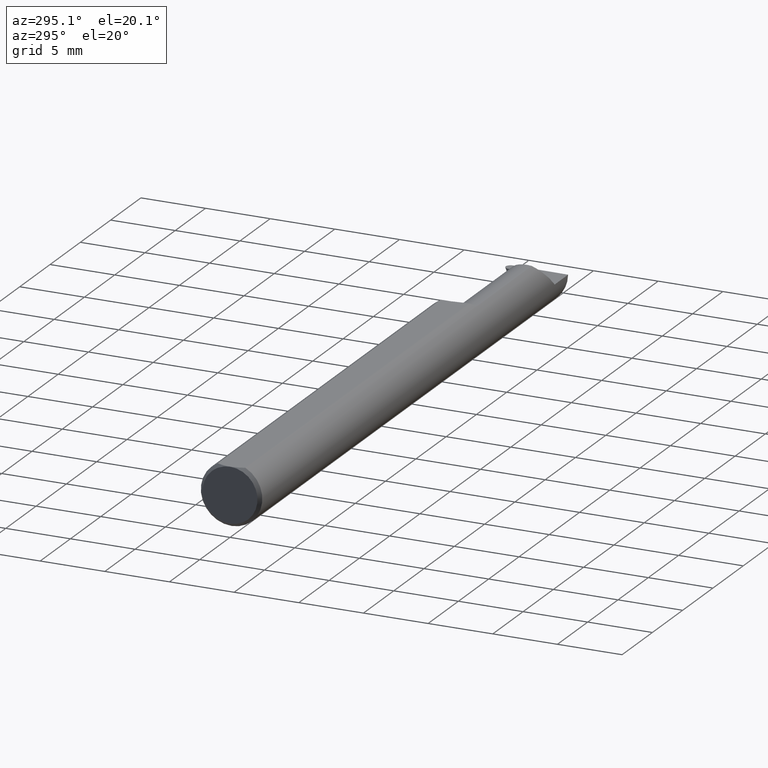
[diagram: clean part render]
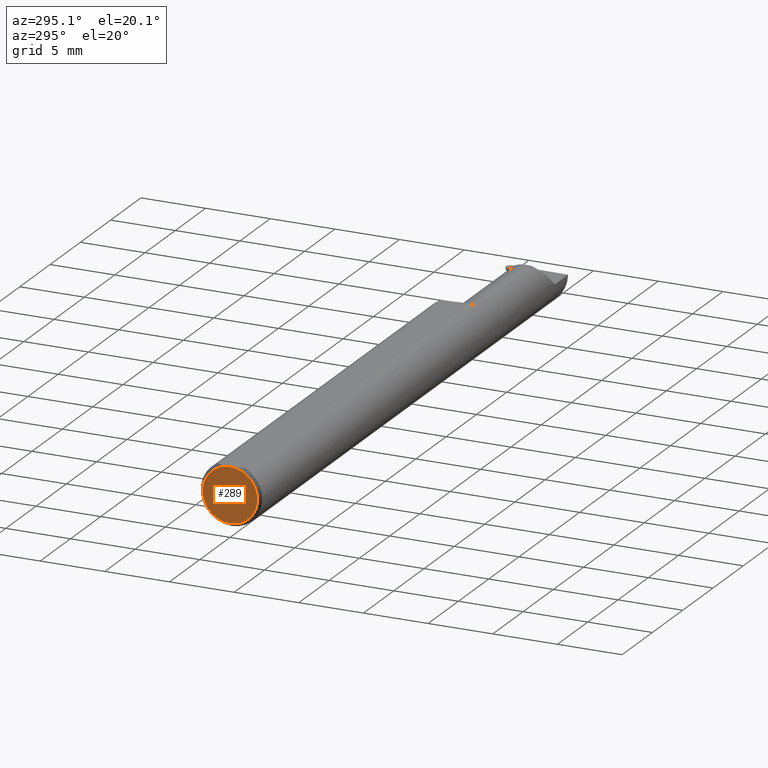
[diagram: same view with one face highlighted and labeled with its STEP entity id]
A machine part, auxiliary view. The second image highlights one B-rep face of the part: STEP entity #289.
In plain terms, the highlighted planar face has unit normal (1, 0, 0).
Its self-contained STEP definition (entity closure, byte-faithful):
#59 = ORIENTED_EDGE ( 'NONE', *, *, #680, .T. ) ;
#84 = AXIS2_PLACEMENT_3D ( 'NONE', #544, #531, #480 ) ;
#191 = ORIENTED_EDGE ( 'NONE', *, *, #272, .T. ) ;
#241 = AXIS2_PLACEMENT_3D ( 'NONE', #677, #569, #469 ) ;
#272 = EDGE_CURVE ( 'NONE', #484, #332, #585, .T. ) ;
#281 = DIRECTION ( 'NONE',  ( 0.000000000000000000, 0.000000000000000000, -1.000000000000000000 ) ) ;
#289 = ADVANCED_FACE ( 'NONE', ( #512 ), #477, .F. ) ;
#332 = VERTEX_POINT ( 'NONE', #690 ) ;
#346 = CIRCLE ( 'NONE', #84, 0.08359999999999989662 ) ;
#351 = EDGE_LOOP ( 'NONE', ( #59, #191 ) ) ;
#460 = DIRECTION ( 'NONE',  ( -1.000000000000000000, -0.000000000000000000, -0.000000000000000000 ) ) ;
#469 = DIRECTION ( 'NONE',  ( 0.000000000000000000, 0.000000000000000000, -1.000000000000000000 ) ) ;
#477 = PLANE ( 'NONE',  #241 ) ;
#480 = DIRECTION ( 'NONE',  ( 0.000000000000000000, 0.000000000000000000, -1.000000000000000000 ) ) ;
#484 = VERTEX_POINT ( 'NONE', #618 ) ;
#509 = CARTESIAN_POINT ( 'NONE',  ( 0.000000000000000000, 0.000000000000000000, 0.000000000000000000 ) ) ;
#512 = FACE_OUTER_BOUND ( 'NONE', #351, .T. ) ;
#531 = DIRECTION ( 'NONE',  ( -1.000000000000000000, -0.000000000000000000, -0.000000000000000000 ) ) ;
#544 = CARTESIAN_POINT ( 'NONE',  ( 0.000000000000000000, 0.000000000000000000, 0.000000000000000000 ) ) ;
#569 = DIRECTION ( 'NONE',  ( 1.000000000000000000, 0.000000000000000000, 0.000000000000000000 ) ) ;
#585 = CIRCLE ( 'NONE', #610, 0.08359999999999989662 ) ;
#610 = AXIS2_PLACEMENT_3D ( 'NONE', #509, #460, #281 ) ;
#618 = CARTESIAN_POINT ( 'NONE',  ( 0.000000000000000000, 0.000000000000000000, -0.08359999999999989662 ) ) ;
#677 = CARTESIAN_POINT ( 'NONE',  ( 0.000000000000000000, 0.000000000000000000, 0.000000000000000000 ) ) ;
#680 = EDGE_CURVE ( 'NONE', #332, #484, #346, .T. ) ;
#690 = CARTESIAN_POINT ( 'NONE',  ( 0.000000000000000000, 0.000000000000000000, 0.08359999999999991049 ) ) ;